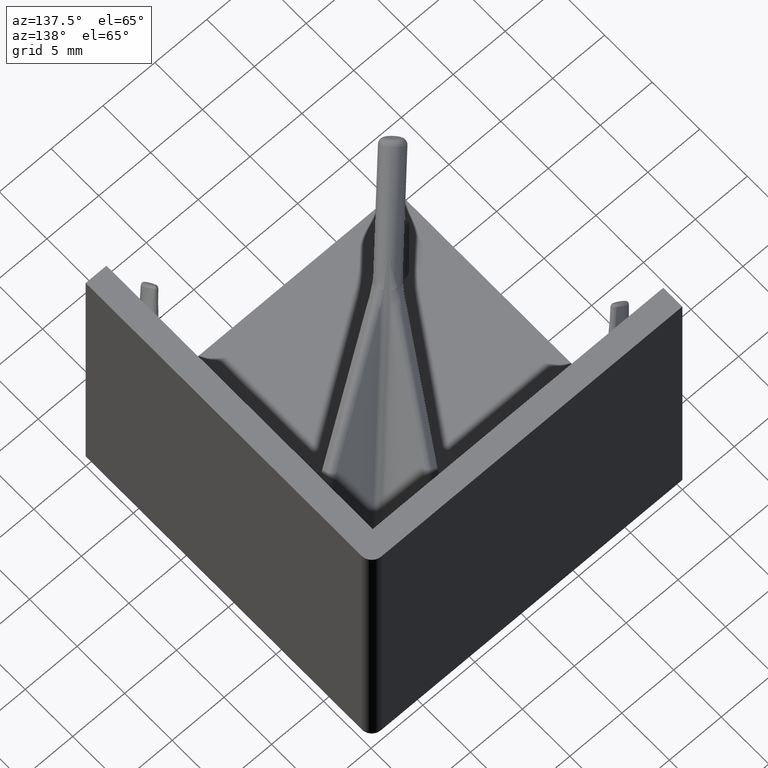
[diagram: clean part render]
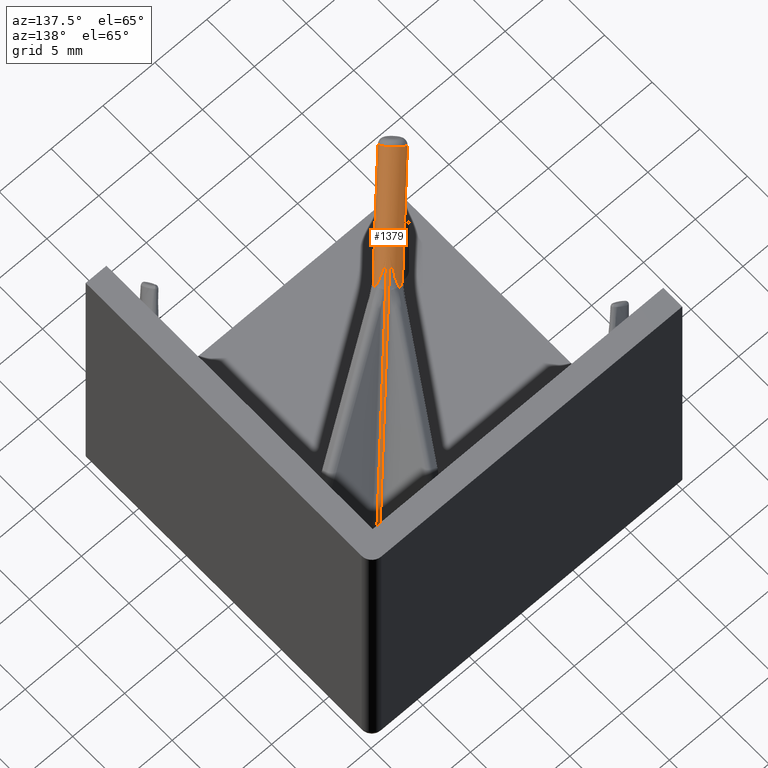
[diagram: same view with one face highlighted and labeled with its STEP entity id]
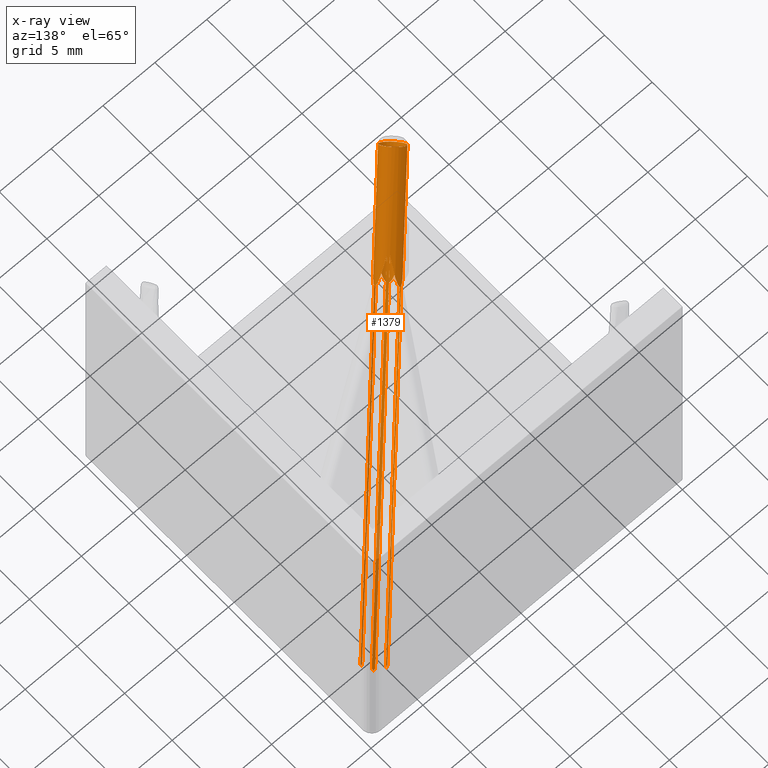
[diagram: x-ray of the same camera — body ghosted, the highlighted face saturated]
A machine part, auxiliary view. The second image highlights one B-rep face of the part: STEP entity #1379.
The next image is the same camera in x-ray: the body ghosted, the highlighted face saturated — about 14% of this face is hidden behind the body in this view.
In plain terms, the highlighted cylindrical surface (bore or boss wall) has radius 1.05 mm, axis along (-0.5774, -0.5774, 0.5774).
Its self-contained STEP definition (entity closure, byte-faithful):
#74=FACE_BOUND('',#309,.T.);
#89=ELLIPSE('',#1494,5.98880524195691,1.06048974200039);
#90=ELLIPSE('',#1495,2.10192126107392,0.828569073311519);
#91=ELLIPSE('',#1496,2.10192125784155,0.828569071580192);
#92=ELLIPSE('',#1497,2.10192126389734,0.82856907483514);
#93=ELLIPSE('',#1498,2.10192125188248,0.8285690683517);
#94=ELLIPSE('',#1499,5.98880523407443,1.06048974071795);
#95=ELLIPSE('',#1500,2.10192124362993,0.82856906379971);
#96=ELLIPSE('',#1501,2.10192126019373,0.828569072873455);
#131=CIRCLE('',#1485,1.05000000000001);
#179=CYLINDRICAL_SURFACE('',#1493,1.05000000000001);
#213=FACE_OUTER_BOUND('',#308,.T.);
#308=EDGE_LOOP('',(#996,#997,#998,#999,#1000,#1001,#1002,#1003,#1004,#1005,
#1006,#1007,#1008,#1009,#1010,#1011,#1012));
#309=EDGE_LOOP('',(#1013));
#408=LINE('',#3457,#480);
#409=LINE('',#3462,#481);
#410=LINE('',#3483,#482);
#411=LINE('',#3489,#483);
#412=LINE('',#3510,#484);
#413=LINE('',#3516,#485);
#480=VECTOR('',#1690,29.8466196564274);
#481=VECTOR('',#1695,29.8466196564226);
#482=VECTOR('',#1696,29.8466196564259);
#483=VECTOR('',#1701,29.8466196564238);
#484=VECTOR('',#1704,29.8466196564254);
#485=VECTOR('',#1709,29.8466196564249);
#556=B_SPLINE_CURVE_WITH_KNOTS('',3,(#3464,#3465,#3466,#3467,#3468,#3469,
#3470,#3471,#3472,#3473,#3474,#3475,#3476,#3477,#3478,#3479,#3480,#3481,
#3482),.UNSPECIFIED.,.F.,.F.,(4,3,3,3,3,3,4),(2.20346632781369,2.4820481090105,
2.71985562327891,3.14159265359024,3.56332968390151,3.80113719816984,4.0797189793664),
 .UNSPECIFIED.);
#557=B_SPLINE_CURVE_WITH_KNOTS('',3,(#3493,#3494,#3495,#3496,#3497,#3498,
#3499,#3500,#3501,#3502,#3503,#3504,#3505,#3506,#3507,#3508),
 .UNSPECIFIED.,.F.,.F.,(4,3,3,3,3,4),(2.61799387799148,2.73632872914085,
3.17593916707828,3.58855427183272,3.81609731278838,4.0797189793664),
 .UNSPECIFIED.);
#558=B_SPLINE_CURVE_WITH_KNOTS('',3,(#3517,#3518,#3519,#3520,#3521,#3522,
#3523,#3524,#3525,#3526,#3527,#3528,#3529,#3530,#3531,#3532),
 .UNSPECIFIED.,.F.,.F.,(4,3,3,3,3,4),(2.20346632781368,2.46708799439142,
2.69463103534697,3.10724614010136,3.54685657803904,3.66519142918809),
 .UNSPECIFIED.);
#611=VERTEX_POINT('',#2569);
#623=VERTEX_POINT('',#2599);
#633=VERTEX_POINT('',#2627);
#643=VERTEX_POINT('',#3453);
#644=VERTEX_POINT('',#3454);
#645=VERTEX_POINT('',#3456);
#646=VERTEX_POINT('',#3458);
#647=VERTEX_POINT('',#3461);
#648=VERTEX_POINT('',#3463);
#649=VERTEX_POINT('',#3484);
#650=VERTEX_POINT('',#3486);
#651=VERTEX_POINT('',#3488);
#652=VERTEX_POINT('',#3490);
#653=VERTEX_POINT('',#3492);
#654=VERTEX_POINT('',#3509);
#655=VERTEX_POINT('',#3511);
#656=VERTEX_POINT('',#3513);
#657=VERTEX_POINT('',#3515);
#762=EDGE_CURVE('',#633,#633,#131,.T.);
#777=EDGE_CURVE('',#643,#644,#89,.T.);
#778=EDGE_CURVE('',#644,#645,#408,.T.);
#779=EDGE_CURVE('',#645,#646,#90,.T.);
#780=EDGE_CURVE('',#646,#623,#91,.T.);
#781=EDGE_CURVE('',#623,#647,#409,.T.);
#782=EDGE_CURVE('',#647,#648,#556,.T.);
#783=EDGE_CURVE('',#648,#611,#410,.T.);
#784=EDGE_CURVE('',#611,#649,#92,.T.);
#785=EDGE_CURVE('',#649,#650,#93,.T.);
#786=EDGE_CURVE('',#650,#651,#411,.T.);
#787=EDGE_CURVE('',#651,#652,#94,.T.);
#788=EDGE_CURVE('',#652,#653,#557,.T.);
#789=EDGE_CURVE('',#653,#654,#412,.T.);
#790=EDGE_CURVE('',#654,#655,#95,.T.);
#791=EDGE_CURVE('',#655,#656,#96,.T.);
#792=EDGE_CURVE('',#656,#657,#413,.T.);
#793=EDGE_CURVE('',#657,#643,#558,.T.);
#996=ORIENTED_EDGE('',*,*,#777,.T.);
#997=ORIENTED_EDGE('',*,*,#778,.T.);
#998=ORIENTED_EDGE('',*,*,#779,.T.);
#999=ORIENTED_EDGE('',*,*,#780,.T.);
#1000=ORIENTED_EDGE('',*,*,#781,.T.);
#1001=ORIENTED_EDGE('',*,*,#782,.T.);
#1002=ORIENTED_EDGE('',*,*,#783,.T.);
#1003=ORIENTED_EDGE('',*,*,#784,.T.);
#1004=ORIENTED_EDGE('',*,*,#785,.T.);
#1005=ORIENTED_EDGE('',*,*,#786,.T.);
#1006=ORIENTED_EDGE('',*,*,#787,.T.);
#1007=ORIENTED_EDGE('',*,*,#788,.T.);
#1008=ORIENTED_EDGE('',*,*,#789,.T.);
#1009=ORIENTED_EDGE('',*,*,#790,.T.);
#1010=ORIENTED_EDGE('',*,*,#791,.T.);
#1011=ORIENTED_EDGE('',*,*,#792,.T.);
#1012=ORIENTED_EDGE('',*,*,#793,.T.);
#1013=ORIENTED_EDGE('',*,*,#762,.T.);
#1379=ADVANCED_FACE('',(#213,#74),#179,.T.);
#1485=AXIS2_PLACEMENT_3D('',#2628,#1670,#1671);
#1493=AXIS2_PLACEMENT_3D('',#3452,#1686,#1687);
#1494=AXIS2_PLACEMENT_3D('',#3455,#1688,#1689);
#1495=AXIS2_PLACEMENT_3D('',#3459,#1691,#1692);
#1496=AXIS2_PLACEMENT_3D('',#3460,#1693,#1694);
#1497=AXIS2_PLACEMENT_3D('',#3485,#1697,#1698);
#1498=AXIS2_PLACEMENT_3D('',#3487,#1699,#1700);
#1499=AXIS2_PLACEMENT_3D('',#3491,#1702,#1703);
#1500=AXIS2_PLACEMENT_3D('',#3512,#1705,#1706);
#1501=AXIS2_PLACEMENT_3D('',#3514,#1707,#1708);
#1670=DIRECTION('center_axis',(0.577350269189624,0.577350269189624,-0.57735026918963));
#1671=DIRECTION('ref_axis',(0.707106781186551,1.63757896132211E-15,0.707106781186544));
#1686=DIRECTION('center_axis',(-0.577350269189624,-0.577350269189624,0.57735026918963));
#1687=DIRECTION('ref_axis',(0.707106781186551,5.27355936696949E-16,0.707106781186544));
#1688=DIRECTION('center_axis',(0.700270129754268,-0.504738500179795,0.504837391454111));
#1689=DIRECTION('ref_axis',(0.713877030615743,0.496259263998589,-0.494071177114014));
#1690=DIRECTION('',(0.577350269189624,0.577350269189624,-0.57735026918963));
#1691=DIRECTION('center_axis',(-0.985792714552596,0.118770206604892,-0.118770206525268));
#1692=DIRECTION('ref_axis',(0.167780747676301,0.729530183704448,-0.663050022074757));
#1693=DIRECTION('center_axis',(0.118770206616954,-0.985792714554362,-0.118770206498554));
#1694=DIRECTION('ref_axis',(0.729530184044596,0.167780747663247,-0.663050021703807));
#1695=DIRECTION('',(-0.577350269189624,-0.577350269189624,0.57735026918963));
#1696=DIRECTION('',(0.577350269189624,0.577350269189624,-0.57735026918963));
#1697=DIRECTION('center_axis',(0.118770206514399,-0.985792714553168,-0.118770206611015));
#1698=DIRECTION('ref_axis',(0.663050022398755,0.167780747676963,-0.729530183409823));
#1699=DIRECTION('center_axis',(0.118770206520862,0.118770206604118,0.98579271455322));
#1700=DIRECTION('ref_axis',(-0.663050021022235,-0.729530184664457,0.167780747661513));
#1701=DIRECTION('',(-0.577350269189624,-0.577350269189624,0.57735026918963));
#1702=DIRECTION('center_axis',(-0.504837391448468,-0.504738500187291,-0.700270129752934));
#1703=DIRECTION('ref_axis',(0.494071177223735,0.496259263887194,-0.713877030617243));
#1704=DIRECTION('',(0.577350269189624,0.577350269189624,-0.57735026918963));
#1705=DIRECTION('center_axis',(0.118770206613956,0.118770206503924,0.985792714554076));
#1706=DIRECTION('ref_axis',(0.72953018552374,0.663050020080392,-0.167780747647307));
#1707=DIRECTION('center_axis',(-0.985792714551199,0.118770206556962,-0.118770206584791));
#1708=DIRECTION('ref_axis',(0.167780747681755,0.663050021976947,-0.729530183792091));
#1709=DIRECTION('',(-0.577350269189624,-0.577350269189624,0.57735026918963));
#2569=CARTESIAN_POINT('',(25.899441634956,27.2586027492405,-27.0969611837402));
#2599=CARTESIAN_POINT('',(27.096961183739,27.2586027492403,-25.8994416349558));
#2627=CARTESIAN_POINT('',(5.74566843465697,5.00320631441108,-4.26074419416525));
#2628=CARTESIAN_POINT('Origin',(5.00320631441108,5.00320631441108,-5.00320631441113));
#3452=CARTESIAN_POINT('Origin',(27.9999999999999,27.9999999999999,-28.0000000000002));
#3453=CARTESIAN_POINT('',(11.1796943478253,10.4372383397905,-9.69478233719398));
#3454=CARTESIAN_POINT('',(10.0266487630248,9.86500722723447,-8.66748789856113));
#3455=CARTESIAN_POINT('Origin',(7.46452897762438,7.48368774603311,-7.49437353674581));
#3456=CARTESIAN_POINT('',(27.2586027492405,27.0969611837399,-25.8994416349563));
#3457=CARTESIAN_POINT('',(28.5069342265949,28.3452926610943,-27.1477731123107));
#3458=CARTESIAN_POINT('',(27.2958829413743,27.2958829420623,-26.0099454777049));
#3459=CARTESIAN_POINT('Origin',(27.4611520877878,27.491318082043,-27.1862442470014));
#3460=CARTESIAN_POINT('Origin',(27.4913180812652,27.4611520873,-27.186244243983));
#3461=CARTESIAN_POINT('',(9.86500722723637,10.0266487630274,-8.66748789856346));
#3462=CARTESIAN_POINT('',(28.3452926610939,28.5069342265953,-27.1477731123108));
#3463=CARTESIAN_POINT('',(8.66748836848548,10.0266484834872,-9.86500703682771));
#3464=CARTESIAN_POINT('Ctrl Pts',(9.86500703682859,10.0266484834889,-8.667488368487));
#3465=CARTESIAN_POINT('Ctrl Pts',(10.0173667452271,10.2968391039013,-8.88994831795008));
#3466=CARTESIAN_POINT('Ctrl Pts',(10.1722975189993,10.5884165871669,-9.13949956904927));
#3467=CARTESIAN_POINT('Ctrl Pts',(10.2914697645876,10.842552922534,-9.37286708283403));
#3468=CARTESIAN_POINT('Ctrl Pts',(10.3931995165168,11.0594929174587,-9.57207805824575));
#3469=CARTESIAN_POINT('Ctrl Pts',(10.4685036110796,11.2481463326238,-9.75847288995216));
#3470=CARTESIAN_POINT('Ctrl Pts',(10.509596916482,11.3902604161337,-9.91451867456229));
#3471=CARTESIAN_POINT('Ctrl Pts',(10.5824733713719,11.6422910205041,-10.1912562957284));
#3472=CARTESIAN_POINT('Ctrl Pts',(10.5455825759909,11.7420113557936,-10.3664759054795));
#3473=CARTESIAN_POINT('Ctrl Pts',(10.4560292407351,11.7420113557936,-10.4560292407352));
#3474=CARTESIAN_POINT('Ctrl Pts',(10.3664759054793,11.7420113557935,-10.545582575991));
#3475=CARTESIAN_POINT('Ctrl Pts',(10.191256295728,11.6422910205037,-10.5824733713715));
#3476=CARTESIAN_POINT('Ctrl Pts',(9.91451867456147,11.390260416133,-10.5095969164812));
#3477=CARTESIAN_POINT('Ctrl Pts',(9.75847288995118,11.248146332623,-10.4685036110787));
#3478=CARTESIAN_POINT('Ctrl Pts',(9.57207805824414,11.0594929174572,-10.3931995165151));
#3479=CARTESIAN_POINT('Ctrl Pts',(9.37286708283287,10.8425529225331,-10.2914697645862));
#3480=CARTESIAN_POINT('Ctrl Pts',(9.13949956904876,10.5884165871667,-10.1722975189983));
#3481=CARTESIAN_POINT('Ctrl Pts',(8.88994831794842,10.2968391038994,-10.0173667452262));
#3482=CARTESIAN_POINT('Ctrl Pts',(8.66748836848548,10.0266484834872,-9.86500703682771));
#3483=CARTESIAN_POINT('',(27.1477731123104,28.5069342265949,-28.3452926610946));
#3484=CARTESIAN_POINT('',(26.0099361390335,27.2958679820247,-27.2958679822043));
#3485=CARTESIAN_POINT('Origin',(27.1862442496415,27.4611520881743,-27.4913180827097));
#3486=CARTESIAN_POINT('',(25.8994416349552,27.0969611837387,-27.2586027492403));
#3487=CARTESIAN_POINT('Origin',(27.186244238414,27.4913180798829,-27.4611520864868));
#3488=CARTESIAN_POINT('',(8.66748774191866,9.8650072907021,-10.0266488562035));
#3489=CARTESIAN_POINT('',(27.1477731123105,28.3452926610939,-28.5069342265956));
#3490=CARTESIAN_POINT('',(9.6947823371938,10.4372383397904,-11.1796943478254));
#3491=CARTESIAN_POINT('Origin',(7.49437353966832,7.48368775065314,-7.46452898304056));
#3492=CARTESIAN_POINT('',(9.86500703682761,8.66748836848546,-10.0266484834872));
#3493=CARTESIAN_POINT('Ctrl Pts',(9.6947823371938,10.4372383397904,-11.1796943478254));
#3494=CARTESIAN_POINT('Ctrl Pts',(9.77038436878113,10.4665122164201,-11.2552966393147));
#3495=CARTESIAN_POINT('Ctrl Pts',(9.8445873188006,10.4911830630759,-11.3265726474028));
#3496=CARTESIAN_POINT('Ctrl Pts',(9.91451849482121,10.5095991076641,-11.3902605238468));
#3497=CARTESIAN_POINT('Ctrl Pts',(10.1743107252361,10.5780141633124,-11.6268590827912));
#3498=CARTESIAN_POINT('Ctrl Pts',(10.3626021461038,10.5494588011991,-11.7420125887622));
#3499=CARTESIAN_POINT('Ctrl Pts',(10.4560303658102,10.4560303658102,-11.742012480916));
#3500=CARTESIAN_POINT('Ctrl Pts',(10.5437214016328,10.3683391275496,-11.7420123796923));
#3501=CARTESIAN_POINT('Ctrl Pts',(10.583656667959,10.1957419735453,-11.6463767566082));
#3502=CARTESIAN_POINT('Ctrl Pts',(10.5095986301742,9.91451853398912,-11.3902605003733));
#3503=CARTESIAN_POINT('Ctrl Pts',(10.468758169099,9.75943347799556,-11.2490211925768));
#3504=CARTESIAN_POINT('Ctrl Pts',(10.3937677985921,9.57318843788254,-11.0607019934322));
#3505=CARTESIAN_POINT('Ctrl Pts',(10.291470607878,9.37286704062136,-10.8425527193216));
#3506=CARTESIAN_POINT('Ctrl Pts',(10.1729534438767,9.14078320990768,-10.5898142705327));
#3507=CARTESIAN_POINT('Ctrl Pts',(10.0181880682423,8.89114752920039,-10.2982956161076));
#3508=CARTESIAN_POINT('Ctrl Pts',(9.86500703682761,8.66748836848546,-10.0266484834872));
#3509=CARTESIAN_POINT('',(27.0969611837396,25.8994416349557,-27.2586027492405));
#3510=CARTESIAN_POINT('',(28.3452926610943,27.1477731123104,-28.5069342265952));
#3511=CARTESIAN_POINT('',(27.2958829424,26.0099454787623,-27.2958829431516));
#3512=CARTESIAN_POINT('Origin',(27.4913180780899,27.1862442306957,-27.4611520853225));
#3513=CARTESIAN_POINT('',(27.2586027492403,25.8994416349555,-27.0969611837393));
#3514=CARTESIAN_POINT('Origin',(27.4611520876939,27.1862442461932,-27.4913180817929));
#3515=CARTESIAN_POINT('',(10.0266487630262,8.66748789856205,-9.8650072272351));
#3516=CARTESIAN_POINT('',(28.5069342265952,27.1477731123105,-28.3452926610942));
#3517=CARTESIAN_POINT('Ctrl Pts',(10.0266484834888,8.66748836848685,-9.86500703682866));
#3518=CARTESIAN_POINT('Ctrl Pts',(10.2982956161088,8.89114752920156,-10.0181880682431));
#3519=CARTESIAN_POINT('Ctrl Pts',(10.5898142705355,9.14078320990922,-10.1729534438748));
#3520=CARTESIAN_POINT('Ctrl Pts',(10.8425527193237,9.37286704062267,-10.2914706078746));
#3521=CARTESIAN_POINT('Ctrl Pts',(11.0607019934339,9.57318843788376,-10.3937677985874));
#3522=CARTESIAN_POINT('Ctrl Pts',(11.2490211925784,9.75943347799763,-10.4687581690951));
#3523=CARTESIAN_POINT('Ctrl Pts',(11.3902605003737,9.91451853399016,-10.5095986301711));
#3524=CARTESIAN_POINT('Ctrl Pts',(11.6463767566066,10.1957419735446,-10.5836566679572));
#3525=CARTESIAN_POINT('Ctrl Pts',(11.7420123796923,10.36833912755,-10.5437214016327));
#3526=CARTESIAN_POINT('Ctrl Pts',(11.7420124809152,10.4560303658096,-10.4560303658097));
#3527=CARTESIAN_POINT('Ctrl Pts',(11.7420125887607,10.5494588011974,-10.3626021461029));
#3528=CARTESIAN_POINT('Ctrl Pts',(11.6268590827899,10.578014163312,-10.1743107252347));
#3529=CARTESIAN_POINT('Ctrl Pts',(11.390260523846,10.5095991076639,-9.91451849482063));
#3530=CARTESIAN_POINT('Ctrl Pts',(11.3265726474024,10.4911830630758,-9.84458731880043));
#3531=CARTESIAN_POINT('Ctrl Pts',(11.2552966393145,10.4665122164201,-9.77038436878111));
#3532=CARTESIAN_POINT('Ctrl Pts',(11.1796943478253,10.4372383397905,-9.69478233719398));